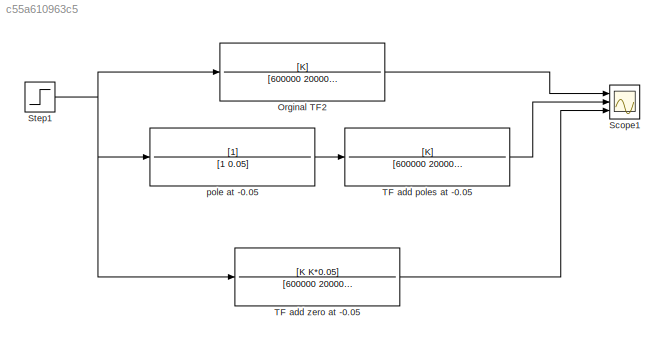
MODEL slx_c55a610963c5
KIND model
CONFIG AbsTol = auto
CONFIG EnableMultiTasking = off
CONFIG FixedStep = auto
CONFIG MaxStep = auto
CONFIG MinStep = auto
CONFIG RelTol = 1e-3
CONFIG SampleTimeConstraint = Unconstrained
CONFIG Solver = VariableStepAuto
CONFIG SolverName = VariableStepAuto
CONFIG StartTime = 0.0
CONFIG StopTime = 10.0
WORKSPACE source: mxarray member
WORKSPACE K = 2000
BLOCK [TransferFcn] Orginal TF2
  Denominator = [600000 20000 K]
  Numerator = [K]
BLOCK [Scope] Scope1
  Floating = off
  NumInputPorts = 3
  Ports = [3]
  ScopeSpecificationString = Simulink.scopes.TimeScopeBlockCfg('CurrentConfiguration', extmgr.ConfigurationSet(extmgr.Configuration('Core','General UI',true),extmgr.Configuration('Core','Source UI',true),extmgr.Configuration('Sources','WiredSimulink',true,'DataLoggingVariableName','ScopeData1'),extmgr.Configuration('Visuals','Time Domain',true),extmgr.Configuration('Tools','Plot Navigation',true),extmgr.Configuration('Tools',...<+40ch>
BLOCK [Step] Step1
  SampleTime = 0
  Time = 0
BLOCK [TransferFcn] TF add poles at -0.05
  Denominator = [600000 20000 K]
  Numerator = [K]
BLOCK [TransferFcn] TF add zero at -0.05
  Denominator = [600000 20000 K]
  Numerator = [K K*0.05]
BLOCK [TransferFcn] pole at -0.05
  Denominator = [1 0.05]
LINE Orginal TF2:1 -> Scope1:1
NET Step1:1 -> Orginal TF2:1, TF add zero at -0.05:1, pole at -0.05:1
LINE TF add poles at -0.05:1 -> Scope1:2
LINE TF add zero at -0.05:1 -> Scope1:3
LINE pole at -0.05:1 -> TF add poles at -0.05:1
note: NET lines group one-source signal fan-out (src -> all destinations, sorted); 1:1 wires keep LINE
